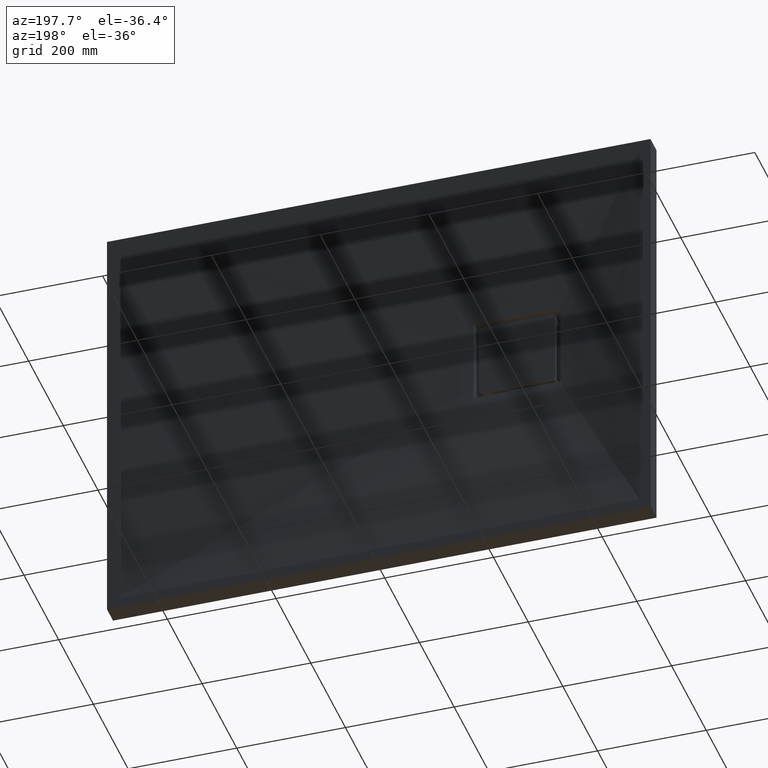
[diagram: clean part render]
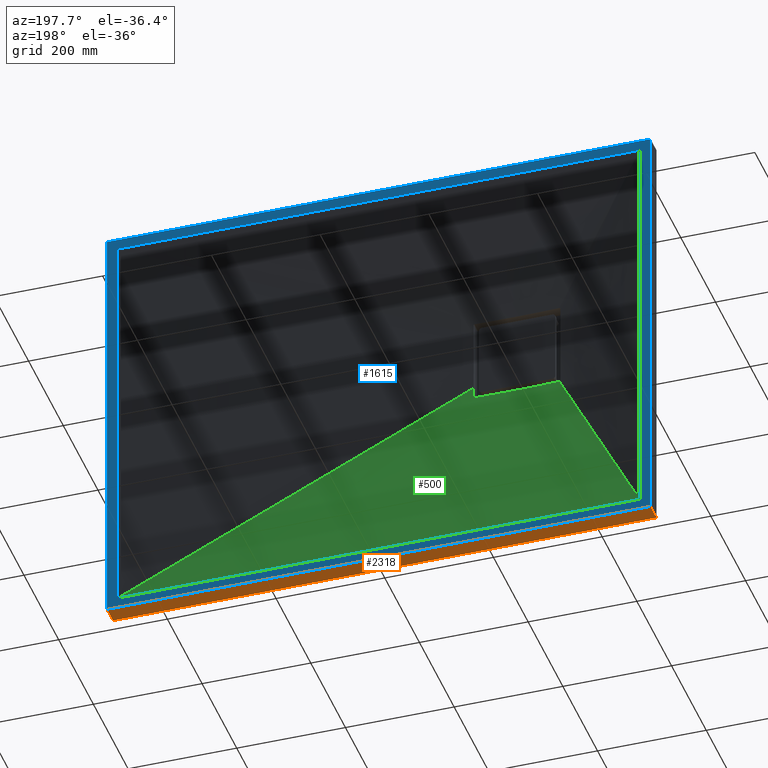
[diagram: same view with three faces highlighted in distinct colors, each labeled with its STEP entity id]
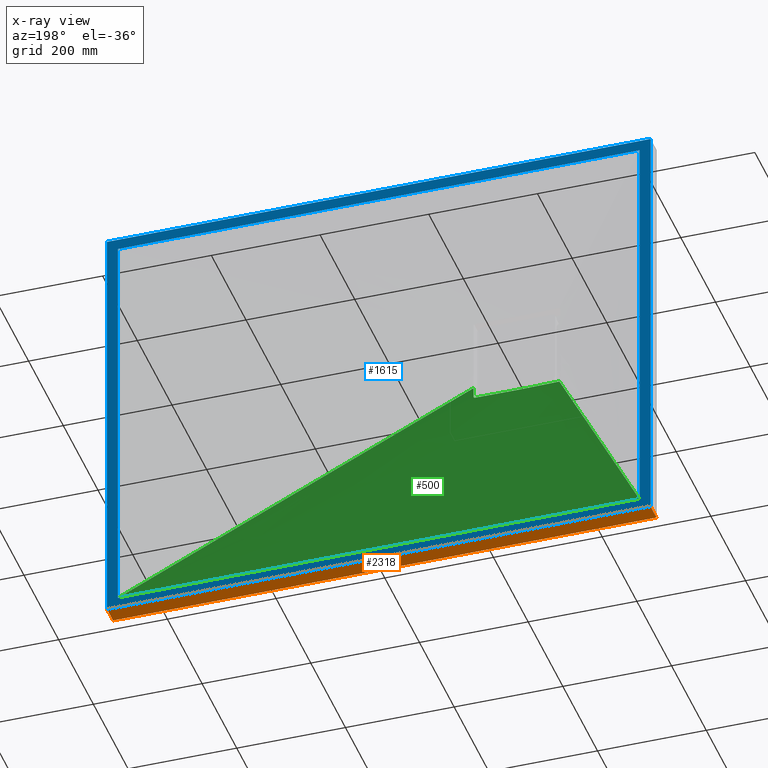
[diagram: x-ray of the same camera — body ghosted, the three highlighted faces saturated]
A machine part, auxiliary view with three faces highlighted in distinct colors.
The next image is the same camera in x-ray (body ghosted, the three faces saturated) — at least one of them is partly hidden behind the body in this view.
Their STEP definitions:

[orange] entity #2318 — the highlighted planar face has unit normal (0, 0, 1).
#29 = LINE ( 'NONE', #3142, #3067 ) ;
#324 = EDGE_LOOP ( 'NONE', ( #3124, #3205, #730, #2531 ) ) ;
#333 = VERTEX_POINT ( 'NONE', #2588 ) ;
#369 = EDGE_CURVE ( 'NONE', #839, #333, #3204, .T. ) ;
#461 = AXIS2_PLACEMENT_3D ( 'NONE', #2998, #2343, #899 ) ;
#537 = VERTEX_POINT ( 'NONE', #2288 ) ;
#667 = DIRECTION ( 'NONE',  ( -1.000000000000000000, -0.0000000000000000000, -0.0000000000000000000 ) ) ;
#730 = ORIENTED_EDGE ( 'NONE', *, *, #853, .F. ) ;
#839 = VERTEX_POINT ( 'NONE', #1159 ) ;
#853 = EDGE_CURVE ( 'NONE', #839, #2303, #29, .T. ) ;
#899 = DIRECTION ( 'NONE',  ( 1.000000000000000000, 0.0000000000000000000, -0.0000000000000000000 ) ) ;
#1123 = CARTESIAN_POINT ( 'NONE',  ( -500.0000000000002300, 35.00000000000000000, -400.0000000000001100 ) ) ;
#1159 = CARTESIAN_POINT ( 'NONE',  ( 499.9999999999997700, 35.00000000000000000, -400.0000000000001100 ) ) ;
#1469 = EDGE_CURVE ( 'NONE', #333, #537, #2564, .T. ) ;
#1485 = DIRECTION ( 'NONE',  ( -1.000000000000000000, -0.0000000000000000000, -0.0000000000000000000 ) ) ;
#1633 = EDGE_CURVE ( 'NONE', #2303, #537, #2845, .T. ) ;
#2126 = VECTOR ( 'NONE', #2804, 1000.000000000000000 ) ;
#2288 = CARTESIAN_POINT ( 'NONE',  ( -500.0000000000002300, 0.0000000000000000000, -400.0000000000001100 ) ) ;
#2291 = FACE_OUTER_BOUND ( 'NONE', #324, .T. ) ;
#2303 = VERTEX_POINT ( 'NONE', #1123 ) ;
#2318 = ADVANCED_FACE ( 'NONE', ( #2291 ), #3200, .F. ) ;
#2343 = DIRECTION ( 'NONE',  ( 0.0000000000000000000, 0.0000000000000000000, 1.000000000000000000 ) ) ;
#2393 = DIRECTION ( 'NONE',  ( -0.0000000000000000000, -1.000000000000000000, -0.0000000000000000000 ) ) ;
#2531 = ORIENTED_EDGE ( 'NONE', *, *, #369, .T. ) ;
#2564 = LINE ( 'NONE', #3256, #2643 ) ;
#2588 = CARTESIAN_POINT ( 'NONE',  ( 499.9999999999997700, 0.0000000000000000000, -400.0000000000001100 ) ) ;
#2638 = CARTESIAN_POINT ( 'NONE',  ( -500.0000000000002300, 35.00000000000000000, -400.0000000000001100 ) ) ;
#2643 = VECTOR ( 'NONE', #1485, 1000.000000000000000 ) ;
#2804 = DIRECTION ( 'NONE',  ( -0.0000000000000000000, -1.000000000000000000, -0.0000000000000000000 ) ) ;
#2805 = CARTESIAN_POINT ( 'NONE',  ( 499.9999999999997700, 35.00000000000000000, -400.0000000000001100 ) ) ;
#2845 = LINE ( 'NONE', #2638, #3267 ) ;
#2998 = CARTESIAN_POINT ( 'NONE',  ( -500.0000000000002300, 35.00000000000000000, -400.0000000000001100 ) ) ;
#3067 = VECTOR ( 'NONE', #667, 1000.000000000000000 ) ;
#3124 = ORIENTED_EDGE ( 'NONE', *, *, #1469, .T. ) ;
#3142 = CARTESIAN_POINT ( 'NONE',  ( -500.0000000000002300, 35.00000000000000000, -400.0000000000001100 ) ) ;
#3200 = PLANE ( 'NONE',  #461 ) ;
#3204 = LINE ( 'NONE', #2805, #2126 ) ;
#3205 = ORIENTED_EDGE ( 'NONE', *, *, #1633, .F. ) ;
#3256 = CARTESIAN_POINT ( 'NONE',  ( -500.0000000000002300, 0.0000000000000000000, -400.0000000000001100 ) ) ;
#3267 = VECTOR ( 'NONE', #2393, 1000.000000000000000 ) ;

[blue] entity #1615 — the highlighted planar face has unit normal (0, 1, 0).
#5 = EDGE_CURVE ( 'NONE', #84, #2924, #3123, .T. ) ;
#19 = ORIENTED_EDGE ( 'NONE', *, *, #946, .T. ) ;
#29 = LINE ( 'NONE', #3142, #3067 ) ;
#84 = VERTEX_POINT ( 'NONE', #1122 ) ;
#130 = CARTESIAN_POINT ( 'NONE',  ( 479.9999999999997700, 35.00000000000000000, -380.0000000000001100 ) ) ;
#149 = CARTESIAN_POINT ( 'NONE',  ( -500.0000000000002300, 35.00000000000000000, -400.0000000000001100 ) ) ;
#223 = DIRECTION ( 'NONE',  ( -1.000000000000000000, 0.0000000000000000000, 0.0000000000000000000 ) ) ;
#322 = ORIENTED_EDGE ( 'NONE', *, *, #1949, .F. ) ;
#380 = LINE ( 'NONE', #469, #844 ) ;
#396 = DIRECTION ( 'NONE',  ( 1.387778780781445700E-016, 0.0000000000000000000, 1.000000000000000000 ) ) ;
#424 = LINE ( 'NONE', #907, #1120 ) ;
#469 = CARTESIAN_POINT ( 'NONE',  ( 499.9999999999997700, 35.00000000000000000, -400.0000000000001100 ) ) ;
#652 = DIRECTION ( 'NONE',  ( -1.460819769243627100E-016, 0.0000000000000000000, -1.000000000000000000 ) ) ;
#667 = DIRECTION ( 'NONE',  ( -1.000000000000000000, -0.0000000000000000000, -0.0000000000000000000 ) ) ;
#832 = EDGE_CURVE ( 'NONE', #2752, #2488, #1303, .T. ) ;
#839 = VERTEX_POINT ( 'NONE', #1159 ) ;
#844 = VECTOR ( 'NONE', #2758, 1000.000000000000000 ) ;
#853 = EDGE_CURVE ( 'NONE', #839, #2303, #29, .T. ) ;
#907 = CARTESIAN_POINT ( 'NONE',  ( 479.9999999999997700, 35.00000000000000000, -380.0000000000001100 ) ) ;
#922 = ORIENTED_EDGE ( 'NONE', *, *, #5, .F. ) ;
#946 = EDGE_CURVE ( 'NONE', #2303, #2752, #2932, .T. ) ;
#955 = ORIENTED_EDGE ( 'NONE', *, *, #1104, .F. ) ;
#1025 = DIRECTION ( 'NONE',  ( 1.460819769243627100E-016, 0.0000000000000000000, 1.000000000000000000 ) ) ;
#1068 = CARTESIAN_POINT ( 'NONE',  ( -500.0000000000001100, 35.00000000000000000, 399.9999999999998900 ) ) ;
#1086 = VECTOR ( 'NONE', #396, 1000.000000000000000 ) ;
#1104 = EDGE_CURVE ( 'NONE', #3088, #3054, #424, .T. ) ;
#1120 = VECTOR ( 'NONE', #223, 1000.000000000000000 ) ;
#1122 = CARTESIAN_POINT ( 'NONE',  ( -480.0000000000001100, 35.00000000000000000, 379.9999999999998900 ) ) ;
#1123 = CARTESIAN_POINT ( 'NONE',  ( -500.0000000000002300, 35.00000000000000000, -400.0000000000001100 ) ) ;
#1159 = CARTESIAN_POINT ( 'NONE',  ( 499.9999999999997700, 35.00000000000000000, -400.0000000000001100 ) ) ;
#1271 = CARTESIAN_POINT ( 'NONE',  ( -480.0000000000002300, 35.00000000000000000, -380.0000000000001100 ) ) ;
#1303 = LINE ( 'NONE', #3035, #2597 ) ;
#1352 = AXIS2_PLACEMENT_3D ( 'NONE', #2453, #2959, #3230 ) ;
#1380 = ORIENTED_EDGE ( 'NONE', *, *, #832, .T. ) ;
#1615 = ADVANCED_FACE ( 'NONE', ( #2663, #2698 ), #2571, .T. ) ;
#1678 = ORIENTED_EDGE ( 'NONE', *, *, #853, .T. ) ;
#1821 = VECTOR ( 'NONE', #1025, 1000.000000000000000 ) ;
#1896 = DIRECTION ( 'NONE',  ( 1.000000000000000000, 0.0000000000000000000, 0.0000000000000000000 ) ) ;
#1949 = EDGE_CURVE ( 'NONE', #3054, #84, #3245, .T. ) ;
#2032 = LINE ( 'NONE', #2607, #2041 ) ;
#2041 = VECTOR ( 'NONE', #652, 1000.000000000000000 ) ;
#2070 = ORIENTED_EDGE ( 'NONE', *, *, #2384, .T. ) ;
#2083 = EDGE_CURVE ( 'NONE', #2924, #3088, #2032, .T. ) ;
#2267 = CARTESIAN_POINT ( 'NONE',  ( 499.9999999999998900, 35.00000000000000000, 399.9999999999998900 ) ) ;
#2303 = VERTEX_POINT ( 'NONE', #1123 ) ;
#2324 = EDGE_LOOP ( 'NONE', ( #19, #1380, #2070, #1678 ) ) ;
#2384 = EDGE_CURVE ( 'NONE', #2488, #839, #380, .T. ) ;
#2453 = CARTESIAN_POINT ( 'NONE',  ( -500.0000000000001100, 35.00000000000000000, 399.9999999999998900 ) ) ;
#2488 = VERTEX_POINT ( 'NONE', #2267 ) ;
#2568 = EDGE_LOOP ( 'NONE', ( #955, #2962, #922, #322 ) ) ;
#2571 = PLANE ( 'NONE',  #1352 ) ;
#2585 = CARTESIAN_POINT ( 'NONE',  ( 479.9999999999998900, 35.00000000000000000, 379.9999999999998900 ) ) ;
#2597 = VECTOR ( 'NONE', #1896, 1000.000000000000000 ) ;
#2607 = CARTESIAN_POINT ( 'NONE',  ( 479.9999999999998900, 35.00000000000000000, 379.9999999999998900 ) ) ;
#2663 = FACE_BOUND ( 'NONE', #2568, .T. ) ;
#2698 = FACE_OUTER_BOUND ( 'NONE', #2324, .T. ) ;
#2752 = VERTEX_POINT ( 'NONE', #1068 ) ;
#2758 = DIRECTION ( 'NONE',  ( -1.387778780781445700E-016, -0.0000000000000000000, -1.000000000000000000 ) ) ;
#2920 = CARTESIAN_POINT ( 'NONE',  ( -480.0000000000002300, 35.00000000000000000, -380.0000000000001100 ) ) ;
#2924 = VERTEX_POINT ( 'NONE', #2585 ) ;
#2930 = CARTESIAN_POINT ( 'NONE',  ( -480.0000000000001100, 35.00000000000000000, 379.9999999999998900 ) ) ;
#2932 = LINE ( 'NONE', #149, #1086 ) ;
#2959 = DIRECTION ( 'NONE',  ( 0.0000000000000000000, 1.000000000000000000, 0.0000000000000000000 ) ) ;
#2962 = ORIENTED_EDGE ( 'NONE', *, *, #2083, .F. ) ;
#3035 = CARTESIAN_POINT ( 'NONE',  ( -500.0000000000001100, 35.00000000000000000, 399.9999999999998900 ) ) ;
#3054 = VERTEX_POINT ( 'NONE', #2920 ) ;
#3067 = VECTOR ( 'NONE', #667, 1000.000000000000000 ) ;
#3085 = VECTOR ( 'NONE', #3198, 1000.000000000000000 ) ;
#3088 = VERTEX_POINT ( 'NONE', #130 ) ;
#3123 = LINE ( 'NONE', #2930, #3085 ) ;
#3142 = CARTESIAN_POINT ( 'NONE',  ( -500.0000000000002300, 35.00000000000000000, -400.0000000000001100 ) ) ;
#3198 = DIRECTION ( 'NONE',  ( 1.000000000000000000, 0.0000000000000000000, 0.0000000000000000000 ) ) ;
#3230 = DIRECTION ( 'NONE',  ( 0.0000000000000000000, -0.0000000000000000000, 1.000000000000000000 ) ) ;
#3245 = LINE ( 'NONE', #1271, #1821 ) ;

[green] entity #500 — the highlighted face is a freeform B-spline surface patch.
#23 = ORIENTED_EDGE ( 'NONE', *, *, #1342, .F. ) ;
#43 = EDGE_CURVE ( 'NONE', #3168, #1141, #1606, .T. ) ;
#101 = CARTESIAN_POINT ( 'NONE',  ( -172.5000000000001400, 20.79248822107058800, -80.00000000000015600 ) ) ;
#102 = EDGE_CURVE ( 'NONE', #1749, #3168, #1296, .T. ) ;
#130 = CARTESIAN_POINT ( 'NONE',  ( 479.9999999999997700, 35.00000000000000000, -380.0000000000001100 ) ) ;
#174 = CARTESIAN_POINT ( 'NONE',  ( -460.0000000000001100, 35.00000000000000000, -380.0000000000001100 ) ) ;
#223 = DIRECTION ( 'NONE',  ( -1.000000000000000000, 0.0000000000000000000, 0.0000000000000000000 ) ) ;
#242 = CARTESIAN_POINT ( 'NONE',  ( -283.8522910802000800, 20.00000000000000400, -72.54864401073352600 ) ) ;
#246 = CARTESIAN_POINT ( 'NONE',  ( -199.9999999999989500, 35.00000000000000000, -380.0000000000001100 ) ) ;
#260 = CARTESIAN_POINT ( 'NONE',  ( -170.0000000000001400, 20.61237449994343200, -71.07022438789807900 ) ) ;
#264 = CARTESIAN_POINT ( 'NONE',  ( -219.9999999999990600, 35.00000000000000000, -380.0000000000001100 ) ) ;
#268 = CARTESIAN_POINT ( 'NONE',  ( -309.3400329823103300, 19.99999999999999600, -53.72374724790607600 ) ) ;
#280 = CARTESIAN_POINT ( 'NONE',  ( -399.9999999999998300, 35.00000000000000000, -380.0000000000001100 ) ) ;
#298 = CARTESIAN_POINT ( 'NONE',  ( -305.5323295782333200, 19.99999999999999600, -57.65102691464445400 ) ) ;
#306 = CARTESIAN_POINT ( 'NONE',  ( -279.9999999999993700, 35.00000000000000000, -380.0000000000001100 ) ) ;
#313 = CARTESIAN_POINT ( 'NONE',  ( -291.8648188520228900, 20.00000000000000400, -68.23539315587210300 ) ) ;
#327 = EDGE_CURVE ( 'NONE', #1141, #3042, #486, .T. ) ;
#335 = CARTESIAN_POINT ( 'NONE',  ( -259.9999999999992000, 35.00000000000000000, -380.0000000000001100 ) ) ;
#340 = CARTESIAN_POINT ( 'NONE',  ( -289.2723619762113600, 20.00000000000000400, -69.76363625832701100 ) ) ;
#370 = VERTEX_POINT ( 'NONE', #2806 ) ;
#401 = ORIENTED_EDGE ( 'NONE', *, *, #327, .T. ) ;
#424 = LINE ( 'NONE', #907, #1120 ) ;
#433 = CARTESIAN_POINT ( 'NONE',  ( -311.1014674510713000, 20.00000000000000000, -51.70532839876475600 ) ) ;
#486 = B_SPLINE_CURVE_WITH_KNOTS ( 'NONE', 3,
 ( #3062, #3038, #3032, #3007, #2985, #2999, #2983, #2955, #2963, #2969, #2948, #2634, #2725, #2760, #2939, #2519 ),
 .UNSPECIFIED., .F., .F.,
 ( 4, 2, 2, 2, 2, 2, 2, 4 ),
 ( 0.0000000000000000000, 0.0004882176208998252500, 0.0009764352417996505000, 0.001464652862699475800, 0.001952870483599301000, 0.002441088104499126500, 0.002929305725398951500, 0.003905740967198602000 ),
 .UNSPECIFIED. ) ;
#488 = CARTESIAN_POINT ( 'NONE',  ( -328.0570293493647100, 21.37497304805322400, -79.93715373006034500 ) ) ;
#497 = FACE_OUTER_BOUND ( 'NONE', #2040, .T. ) ;
#500 = ADVANCED_FACE ( 'NONE', ( #497 ), #2407, .F. ) ;
#521 = CARTESIAN_POINT ( 'NONE',  ( -480.0000000000002300, 35.00000000000000000, -380.0000000000001100 ) ) ;
#546 = CARTESIAN_POINT ( 'NONE',  ( -312.7236659569411500, 20.00000000000000000, -49.65623554924502500 ) ) ;
#632 = CARTESIAN_POINT ( 'NONE',  ( -321.0422014735083300, 21.23724117164325500, -80.00000000000014200 ) ) ;
#746 = CARTESIAN_POINT ( 'NONE',  ( -170.0000000000001400, 20.76452030899138300, -77.50000000000012800 ) ) ;
#907 = CARTESIAN_POINT ( 'NONE',  ( 479.9999999999997700, 35.00000000000000000, -380.0000000000001100 ) ) ;
#944 = DIRECTION ( 'NONE',  ( -0.4513843069708417500, 0.04047652432901682100, -0.8914111612486661500 ) ) ;
#962 = ORIENTED_EDGE ( 'NONE', *, *, #1104, .T. ) ;
#1059 = CARTESIAN_POINT ( 'NONE',  ( -327.5000000000001100, 21.36610154175616200, -80.00000000000012800 ) ) ;
#1065 = CARTESIAN_POINT ( 'NONE',  ( -327.6880273140707200, 21.36985348124190800, -80.00000000000017100 ) ) ;
#1104 = EDGE_CURVE ( 'NONE', #3088, #3054, #424, .T. ) ;
#1108 = CARTESIAN_POINT ( 'NONE',  ( -327.8737041317899600, 21.37280744696774800, -79.97905405231257700 ) ) ;
#1120 = VECTOR ( 'NONE', #223, 1000.000000000000000 ) ;
#1141 = VERTEX_POINT ( 'NONE', #101 ) ;
#1282 = CARTESIAN_POINT ( 'NONE',  ( -172.5000000000001400, 20.79248822107058800, -80.00000000000015600 ) ) ;
#1296 = B_SPLINE_CURVE_WITH_KNOTS ( 'NONE', 3,
 ( #488, #1108, #1065, #1059 ),
 .UNSPECIFIED., .F., .F.,
 ( 4, 4 ),
 ( 0.0000000000000000000, 0.0005606336177244946500 ),
 .UNSPECIFIED. ) ;
#1301 = CARTESIAN_POINT ( 'NONE',  ( -185.4172982553151600, 20.62390273930166600, -80.00000000000009900 ) ) ;
#1322 = CARTESIAN_POINT ( 'NONE',  ( -198.3345296251584400, 20.45009084135588400, -80.00000000000014200 ) ) ;
#1342 = EDGE_CURVE ( 'NONE', #1749, #3054, #1581, .T. ) ;
#1350 = CARTESIAN_POINT ( 'NONE',  ( -396.3618329784706600, 27.50000000000000400, -214.8281177746225700 ) ) ;
#1353 = CARTESIAN_POINT ( 'NONE',  ( -217.7107657837391100, 20.21977748174869300, -80.00000000000012800 ) ) ;
#1381 = CARTESIAN_POINT ( 'NONE',  ( -224.1695525234111400, 20.14840618628052500, -80.00000000000014200 ) ) ;
#1400 = CARTESIAN_POINT ( 'NONE',  ( -237.0873774219126100, 20.03854337540850100, -80.00000000000012800 ) ) ;
#1405 = CARTESIAN_POINT ( 'NONE',  ( -243.5464150331349100, 19.99997672017737900, -80.00000000000019900 ) ) ;
#1406 = CARTESIAN_POINT ( 'NONE',  ( 146.3618329784702600, 27.50000000000000400, -214.8281177746226000 ) ) ;
#1420 = CARTESIAN_POINT ( 'NONE',  ( -256.4650805479571400, 20.00002330054663700, -80.00000000000017100 ) ) ;
#1480 = CARTESIAN_POINT ( 'NONE',  ( -262.9238550731867600, 20.04278869550400800, -80.00000000000018500 ) ) ;
#1486 = CARTESIAN_POINT ( 'NONE',  ( -379.9999999999997700, 35.00000000000000000, -380.0000000000001100 ) ) ;
#1487 = CARTESIAN_POINT ( 'NONE',  ( -262.8300887830189400, 20.00000000000000000, -79.02983365478732500 ) ) ;
#1488 = CARTESIAN_POINT ( 'NONE',  ( -79.99999999999839400, 35.00000000000000000, -380.0000000000001100 ) ) ;
#1500 = CARTESIAN_POINT ( 'NONE',  ( -272.1587811559882700, 20.00000000000000000, -76.93563623690299400 ) ) ;
#1517 = CARTESIAN_POINT ( 'NONE',  ( -281.0246986611645100, 19.99999999999999600, -73.80526572292677700 ) ) ;
#1522 = CARTESIAN_POINT ( 'NONE',  ( -265.9848105918272800, 20.00000000000000400, -78.45119206130301800 ) ) ;
#1526 = CARTESIAN_POINT ( 'NONE',  ( -170.0000000000000900, 20.38836235817883100, -58.20910777402954700 ) ) ;
#1528 = CARTESIAN_POINT ( 'NONE',  ( -99.99999999999847900, 35.00000000000000000, -380.0000000000001100 ) ) ;
#1565 = CARTESIAN_POINT ( 'NONE',  ( -159.9999999999987500, 35.00000000000000000, -380.0000000000001100 ) ) ;
#1579 = CARTESIAN_POINT ( 'NONE',  ( -275.1779066619502000, 20.00000000000000400, -75.99883019869466200 ) ) ;
#1581 = LINE ( 'NONE', #1350, #1598 ) ;
#1592 = CARTESIAN_POINT ( 'NONE',  ( -256.4501675587622500, 20.00000000000000400, -79.80426758104728400 ) ) ;
#1598 = VECTOR ( 'NONE', #944, 1000.000000000000200 ) ;
#1604 = CARTESIAN_POINT ( 'NONE',  ( 40.00000000000105200, 35.00000000000000000, -380.0000000000001100 ) ) ;
#1605 = CARTESIAN_POINT ( 'NONE',  ( -246.7748734083257000, 19.99999999999998900, -80.00000000000017100 ) ) ;
#1606 = B_SPLINE_CURVE_WITH_KNOTS ( 'NONE', 3,
 ( #1815, #632, #2836, #1802, #1786, #1790, #1798, #1480, #1420, #1405, #1400, #1381, #1353, #1322, #1301, #1282 ),
 .UNSPECIFIED., .F., .F.,
 ( 4, 2, 2, 2, 2, 2, 2, 4 ),
 ( 0.0000000000000000000, 0.01937720568975051900, 0.03875441137950103700, 0.05813161706925155200, 0.07750882275900207500, 0.09688602844875250600, 0.1162632341385029400, 0.1550176455180038700 ),
 .UNSPECIFIED. ) ;
#1614 = CARTESIAN_POINT ( 'NONE',  ( -39.99999999999892000, 35.00000000000000000, -380.0000000000001100 ) ) ;
#1619 = CARTESIAN_POINT ( 'NONE',  ( -253.2251265916746100, 20.00000000000000000, -80.00000000000018500 ) ) ;
#1622 = CARTESIAN_POINT ( 'NONE',  ( -19.99999999999953800, 35.00000000000000000, -380.0000000000001100 ) ) ;
#1687 = CARTESIAN_POINT ( 'NONE',  ( -327.5000000000001100, 21.36610154175616200, -80.00000000000012800 ) ) ;
#1707 = EDGE_CURVE ( 'NONE', #3042, #370, #2499, .T. ) ;
#1716 = CARTESIAN_POINT ( 'NONE',  ( -243.5498324412382100, 20.00000000000000000, -79.80426758104729900 ) ) ;
#1749 = VERTEX_POINT ( 'NONE', #3078 ) ;
#1786 = CARTESIAN_POINT ( 'NONE',  ( -295.2125069539608300, 20.65407989702382400, -80.00000000000012800 ) ) ;
#1790 = CARTESIAN_POINT ( 'NONE',  ( -282.2976690965002100, 20.36208421918377500, -80.00000000000009900 ) ) ;
#1798 = CARTESIAN_POINT ( 'NONE',  ( -275.8401254634487700, 20.22559177442568100, -80.00000000000017100 ) ) ;
#1802 = CARTESIAN_POINT ( 'NONE',  ( -301.6697524492258800, 20.80791699955673500, -80.00000000000012800 ) ) ;
#1815 = CARTESIAN_POINT ( 'NONE',  ( -327.5000000000001100, 21.36610154175616200, -80.00000000000012800 ) ) ;
#1871 = VECTOR ( 'NONE', #1974, 1000.000000000000000 ) ;
#1893 = CARTESIAN_POINT ( 'NONE',  ( -139.9999999999986600, 35.00000000000000000, -380.0000000000001100 ) ) ;
#1897 = CARTESIAN_POINT ( 'NONE',  ( 260.0000000000008000, 35.00000000000000000, -380.0000000000000000 ) ) ;
#1901 = CARTESIAN_POINT ( 'NONE',  ( -216.1477089198004100, 20.00000000000000700, -72.54864401073355400 ) ) ;
#1912 = CARTESIAN_POINT ( 'NONE',  ( 140.0000000000013400, 35.00000000000000000, -380.0000000000000000 ) ) ;
#1915 = CARTESIAN_POINT ( 'NONE',  ( -299.1122141590304300, 20.00000000000000400, -63.21481341453107200 ) ) ;
#1932 = CARTESIAN_POINT ( 'NONE',  ( 160.0000000000012200, 35.00000000000000000, -380.0000000000000000 ) ) ;
#1938 = CARTESIAN_POINT ( 'NONE',  ( 100.0000000000015100, 35.00000000000000000, -380.0000000000000600 ) ) ;
#1944 = CARTESIAN_POINT ( 'NONE',  ( -296.7847326650596100, 20.00000000000000000, -64.96091691246380200 ) ) ;
#1946 = CARTESIAN_POINT ( 'NONE',  ( 80.00000000000157700, 35.00000000000000000, -380.0000000000001100 ) ) ;
#1954 = CARTESIAN_POINT ( 'NONE',  ( -210.7276380237890700, 20.00000000000000700, -69.76363625832704000 ) ) ;
#1964 = CARTESIAN_POINT ( 'NONE',  ( -237.1699112169815200, 20.00000000000001100, -79.02983365478733900 ) ) ;
#1969 = CARTESIAN_POINT ( 'NONE',  ( 20.00000000000044100, 35.00000000000000000, -380.0000000000001100 ) ) ;
#1972 = LINE ( 'NONE', #1406, #1871 ) ;
#1974 = DIRECTION ( 'NONE',  ( -0.8960082084434998200, -0.02014176502442122400, 0.4435804320566573700 ) ) ;
#1975 = CARTESIAN_POINT ( 'NONE',  ( 280.0000000000006800, 35.00000000000000000, -380.0000000000000000 ) ) ;
#2000 = CARTESIAN_POINT ( 'NONE',  ( -339.9999999999996600, 35.00000000000000000, -380.0000000000001100 ) ) ;
#2026 = CARTESIAN_POINT ( 'NONE',  ( 320.0000000000005100, 35.00000000000000000, -380.0000000000000000 ) ) ;
#2036 = CARTESIAN_POINT ( 'NONE',  ( -208.1351811479773600, 19.99999999999999600, -68.23539315587208900 ) ) ;
#2040 = EDGE_LOOP ( 'NONE', ( #23, #2179, #3058, #401, #3008, #2565, #962 ) ) ;
#2044 = CARTESIAN_POINT ( 'NONE',  ( -218.9753013388358100, 20.00000000000000400, -73.80526572292680500 ) ) ;
#2054 = CARTESIAN_POINT ( 'NONE',  ( -224.8220933380502200, 19.99999999999999600, -75.99883019869466200 ) ) ;
#2057 = EDGE_CURVE ( 'NONE', #3088, #370, #1972, .T. ) ;
#2059 = CARTESIAN_POINT ( 'NONE',  ( -227.8412188440121900, 20.00000000000000000, -76.93563623690299400 ) ) ;
#2094 = CARTESIAN_POINT ( 'NONE',  ( -234.0151894081732300, 20.00000000000000000, -78.45119206130299000 ) ) ;
#2096 = CARTESIAN_POINT ( 'NONE',  ( -190.6599670176898900, 20.00000000000000000, -53.72374724790609700 ) ) ;
#2102 = CARTESIAN_POINT ( 'NONE',  ( 439.9999999999999400, 35.00000000000000000, -380.0000000000001100 ) ) ;
#2109 = CARTESIAN_POINT ( 'NONE',  ( -319.9999999999995500, 35.00000000000000000, -380.0000000000001100 ) ) ;
#2116 = CARTESIAN_POINT ( 'NONE',  ( 400.0000000000001100, 35.00000000000000000, -380.0000000000001100 ) ) ;
#2120 = CARTESIAN_POINT ( 'NONE',  ( -440.0000000000000600, 35.00000000000000000, -380.0000000000001100 ) ) ;
#2122 = CARTESIAN_POINT ( 'NONE',  ( -196.5140164712901500, 20.00000000000000000, -59.55981682815171000 ) ) ;
#2134 = CARTESIAN_POINT ( 'NONE',  ( -303.4859835287102200, 20.00000000000000000, -59.55981682815171000 ) ) ;
#2137 = CARTESIAN_POINT ( 'NONE',  ( 340.0000000000004000, 35.00000000000000000, -380.0000000000001100 ) ) ;
#2141 = CARTESIAN_POINT ( 'NONE',  ( -203.2152673349407100, 20.00000000000000400, -64.96091691246383000 ) ) ;
#2151 = CARTESIAN_POINT ( 'NONE',  ( -187.2763340430592200, 20.00000000000000000, -49.65623554924508200 ) ) ;
#2158 = CARTESIAN_POINT ( 'NONE',  ( -188.8985325489290100, 20.00000000000000400, -51.70532839876480600 ) ) ;
#2171 = CARTESIAN_POINT ( 'NONE',  ( 459.9999999999998300, 35.00000000000000000, -380.0000000000001100 ) ) ;
#2179 = ORIENTED_EDGE ( 'NONE', *, *, #102, .T. ) ;
#2181 = CARTESIAN_POINT ( 'NONE',  ( 479.9999999999997700, 35.00000000000000000, -380.0000000000001100 ) ) ;
#2193 = CARTESIAN_POINT ( 'NONE',  ( 380.0000000000002300, 35.00000000000000000, -380.0000000000001100 ) ) ;
#2213 = CARTESIAN_POINT ( 'NONE',  ( 200.0000000000010800, 35.00000000000000000, -380.0000000000000000 ) ) ;
#2231 = CARTESIAN_POINT ( 'NONE',  ( -194.4676704217669400, 20.00000000000000000, -57.65102691464449000 ) ) ;
#2242 = CARTESIAN_POINT ( 'NONE',  ( -200.8877858409699400, 20.00000000000000000, -63.21481341453108600 ) ) ;
#2252 = CARTESIAN_POINT ( 'NONE',  ( 220.0000000000009700, 35.00000000000000000, -380.0000000000000000 ) ) ;
#2407 = B_SPLINE_SURFACE_WITH_KNOTS ( 'NONE', 3, 1, ( 
 ( #521, #546 ),
 ( #174, #433 ),
 ( #2120, #268 ),
 ( #280, #298 ),
 ( #1486, #2134 ),
 ( #2000, #1915 ),
 ( #2109, #1944 ),
 ( #306, #313 ),
 ( #335, #340 ),
 ( #264, #242 ),
 ( #246, #1517 ),
 ( #1565, #1579 ),
 ( #1893, #1500 ),
 ( #1528, #1522 ),
 ( #1488, #1487 ),
 ( #1614, #1592 ),
 ( #1622, #1619 ),
 ( #1969, #1605 ),
 ( #1604, #1716 ),
 ( #1946, #1964 ),
 ( #1938, #2094 ),
 ( #1912, #2059 ),
 ( #1932, #2054 ),
 ( #2213, #2044 ),
 ( #2252, #1901 ),
 ( #1897, #1954 ),
 ( #1975, #2036 ),
 ( #2026, #2141 ),
 ( #2137, #2242 ),
 ( #2193, #2122 ),
 ( #2116, #2231 ),
 ( #2102, #2096 ),
 ( #2171, #2158 ),
 ( #2181, #2151 ) ),
 .UNSPECIFIED., .F., .F., .F.,
 ( 4, 2, 2, 2, 2, 2, 2, 2, 2, 2, 2, 2, 2, 2, 2, 2, 4 ),
 ( 2, 2 ),
 ( 0.0000000000000000000, 0.06250000000000027800, 0.1250000000000005600, 0.1875000000000008300, 0.2500000000000011100, 0.3125000000000013900, 0.3750000000000016700, 0.4375000000000019400, 0.5000000000000000000, 0.5625000000000018900, 0.6250000000000016700, 0.6875000000000013300, 0.7500000000000011100, 0.8125000000000007800, 0.8750000000000005600, 0.9375000000000002200, 1.000000000000000000 ),
 ( 0.0000000000000000000, 1.000000000000000000 ),
 .UNSPECIFIED. ) ;
#2499 = B_SPLINE_CURVE_WITH_KNOTS ( 'NONE', 3,
 ( #3192, #260, #2783, #1526 ),
 .UNSPECIFIED., .F., .F.,
 ( 4, 4 ),
 ( 0.0000000000000000000, 0.01929455927659330300 ),
 .UNSPECIFIED. ) ;
#2519 = CARTESIAN_POINT ( 'NONE',  ( -170.0000000000001400, 20.76452030899138300, -77.50000000000012800 ) ) ;
#2565 = ORIENTED_EDGE ( 'NONE', *, *, #2057, .F. ) ;
#2634 = CARTESIAN_POINT ( 'NONE',  ( -170.3311998843521700, 20.79018504519796900, -78.75431042448480000 ) ) ;
#2725 = CARTESIAN_POINT ( 'NONE',  ( -170.2534960235686600, 20.78768643160315600, -78.60891686261550100 ) ) ;
#2760 = CARTESIAN_POINT ( 'NONE',  ( -170.0663122671376800, 20.77928683201744400, -78.15808123828073000 ) ) ;
#2783 = CARTESIAN_POINT ( 'NONE',  ( -170.0000000000001400, 20.48830352454134700, -64.63990133756613000 ) ) ;
#2806 = CARTESIAN_POINT ( 'NONE',  ( -170.0000000000000900, 20.38836235817883100, -58.20910777402954700 ) ) ;
#2836 = CARTESIAN_POINT ( 'NONE',  ( -314.5846121154540400, 21.09893549975994600, -80.00000000000012800 ) ) ;
#2920 = CARTESIAN_POINT ( 'NONE',  ( -480.0000000000002300, 35.00000000000000000, -380.0000000000001100 ) ) ;
#2939 = CARTESIAN_POINT ( 'NONE',  ( -170.0000000000002600, 20.77233065192097400, -77.83006990337176500 ) ) ;
#2948 = CARTESIAN_POINT ( 'NONE',  ( -170.5139895976051900, 20.79442397950131000, -79.02733469291609900 ) ) ;
#2955 = CARTESIAN_POINT ( 'NONE',  ( -170.9767186879251100, 20.79968572703128200, -79.48903966225334700 ) ) ;
#2963 = CARTESIAN_POINT ( 'NONE',  ( -170.8480770264070300, 20.79877016027026200, -79.38353986552114300 ) ) ;
#2969 = CARTESIAN_POINT ( 'NONE',  ( -170.6174765921257700, 20.79613912423547400, -79.15308123045942100 ) ) ;
#2983 = CARTESIAN_POINT ( 'NONE',  ( -171.2483949804448300, 20.80061286257556200, -79.67028790918578800 ) ) ;
#2985 = CARTESIAN_POINT ( 'NONE',  ( -171.6945749851356300, 20.79980782663060200, -79.87236520843633500 ) ) ;
#2999 = CARTESIAN_POINT ( 'NONE',  ( -171.3919382126134400, 20.80064129604755500, -79.74700360749649500 ) ) ;
#3007 = CARTESIAN_POINT ( 'NONE',  ( -171.8532641243858200, 20.79893552968642100, -79.92037911771853900 ) ) ;
#3008 = ORIENTED_EDGE ( 'NONE', *, *, #1707, .T. ) ;
#3032 = CARTESIAN_POINT ( 'NONE',  ( -172.1726161729561400, 20.79635409892056300, -79.98381202913681400 ) ) ;
#3038 = CARTESIAN_POINT ( 'NONE',  ( -172.3349320969538500, 20.79464254555932000, -80.00000000000014200 ) ) ;
#3042 = VERTEX_POINT ( 'NONE', #746 ) ;
#3054 = VERTEX_POINT ( 'NONE', #2920 ) ;
#3058 = ORIENTED_EDGE ( 'NONE', *, *, #43, .T. ) ;
#3062 = CARTESIAN_POINT ( 'NONE',  ( -172.5000000000001400, 20.79248822107058800, -80.00000000000015600 ) ) ;
#3078 = CARTESIAN_POINT ( 'NONE',  ( -328.0570293493647100, 21.37497304805322400, -79.93715373006034500 ) ) ;
#3088 = VERTEX_POINT ( 'NONE', #130 ) ;
#3168 = VERTEX_POINT ( 'NONE', #1687 ) ;
#3192 = CARTESIAN_POINT ( 'NONE',  ( -170.0000000000001400, 20.76452030899138300, -77.50000000000012800 ) ) ;